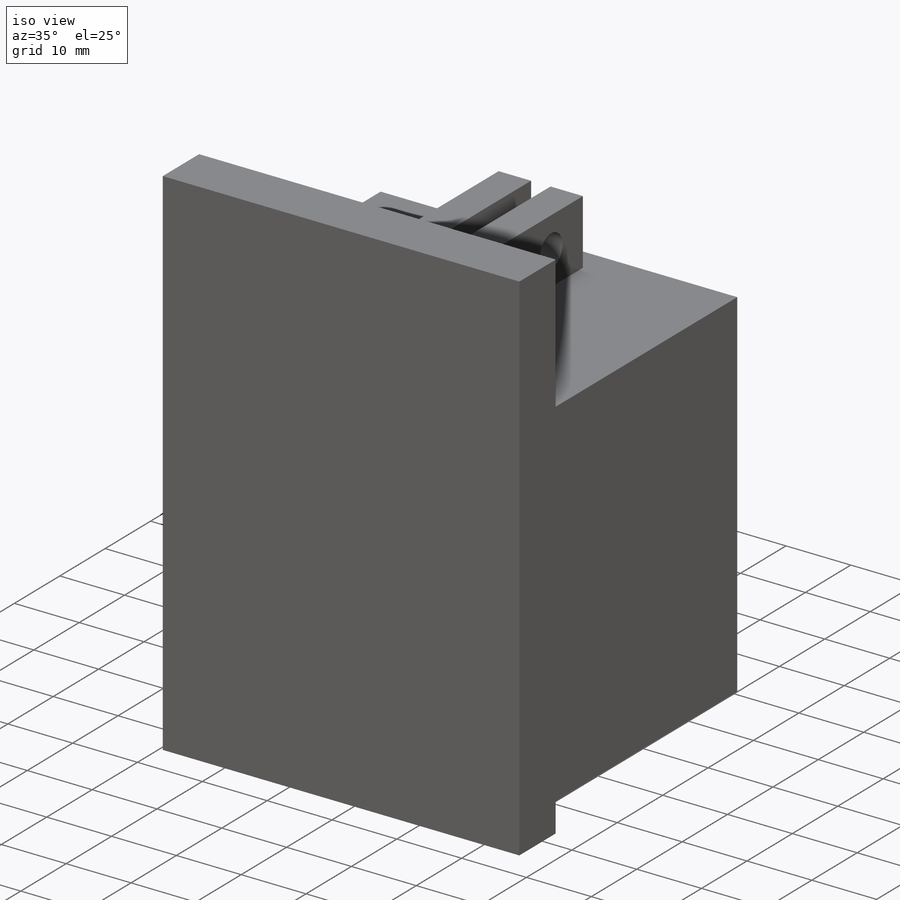
[diagram: iso view]
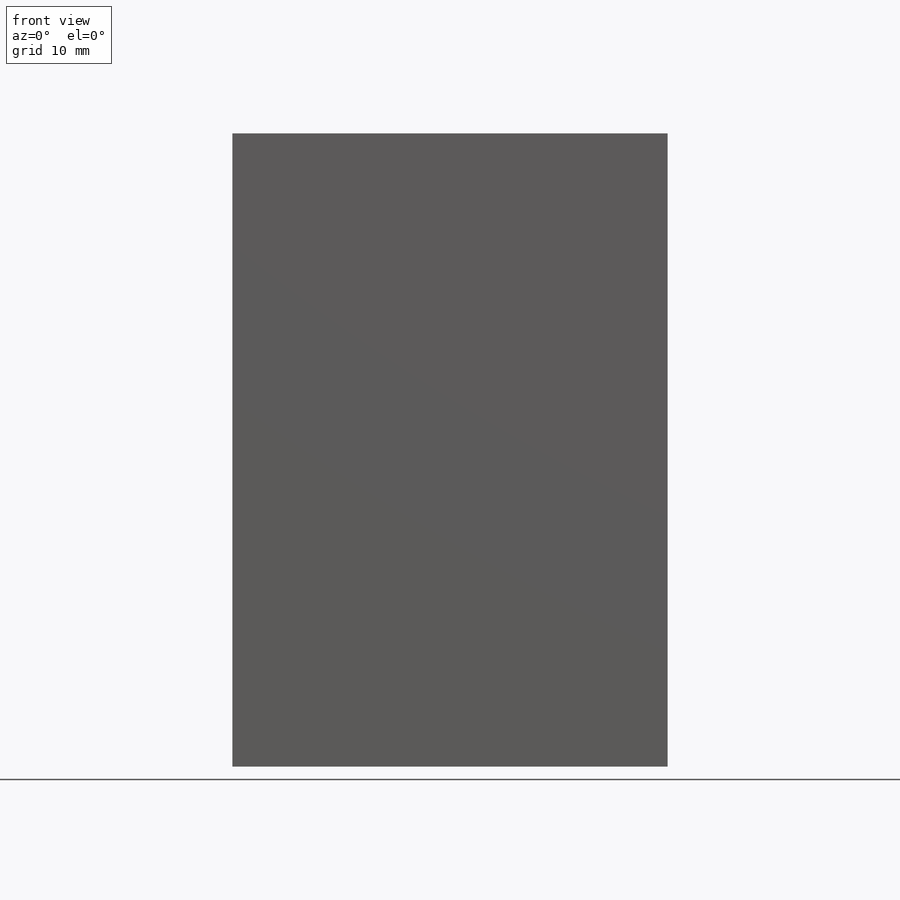
[diagram: front view]
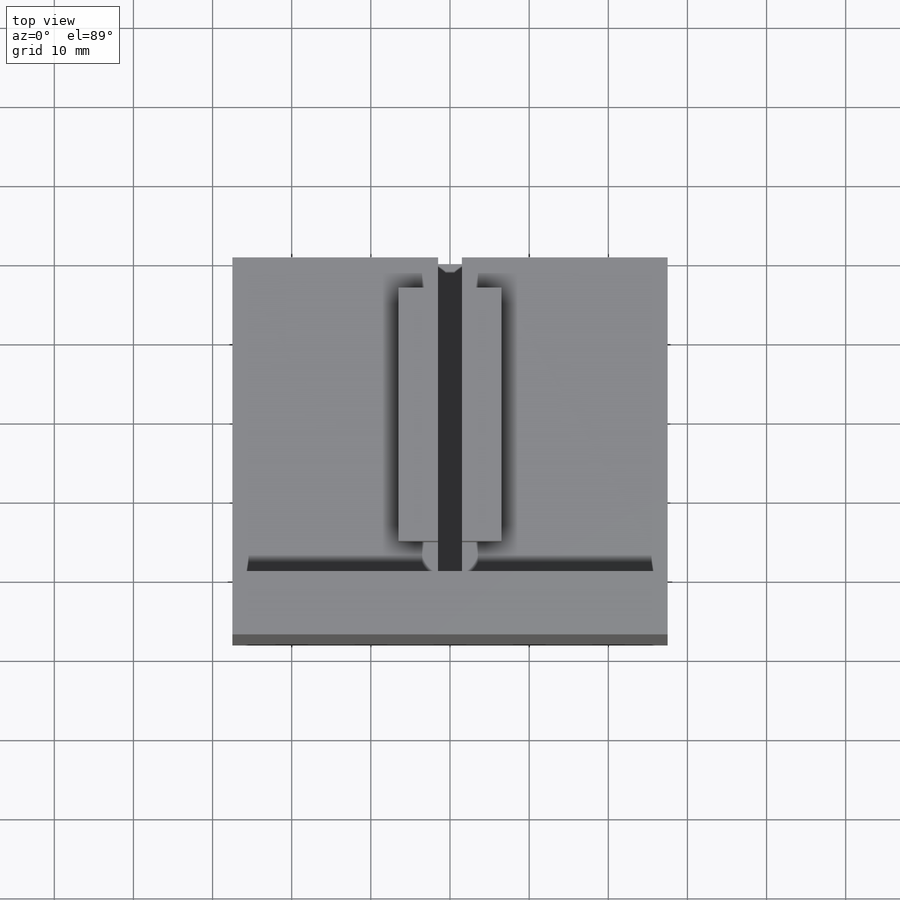
[diagram: top view]
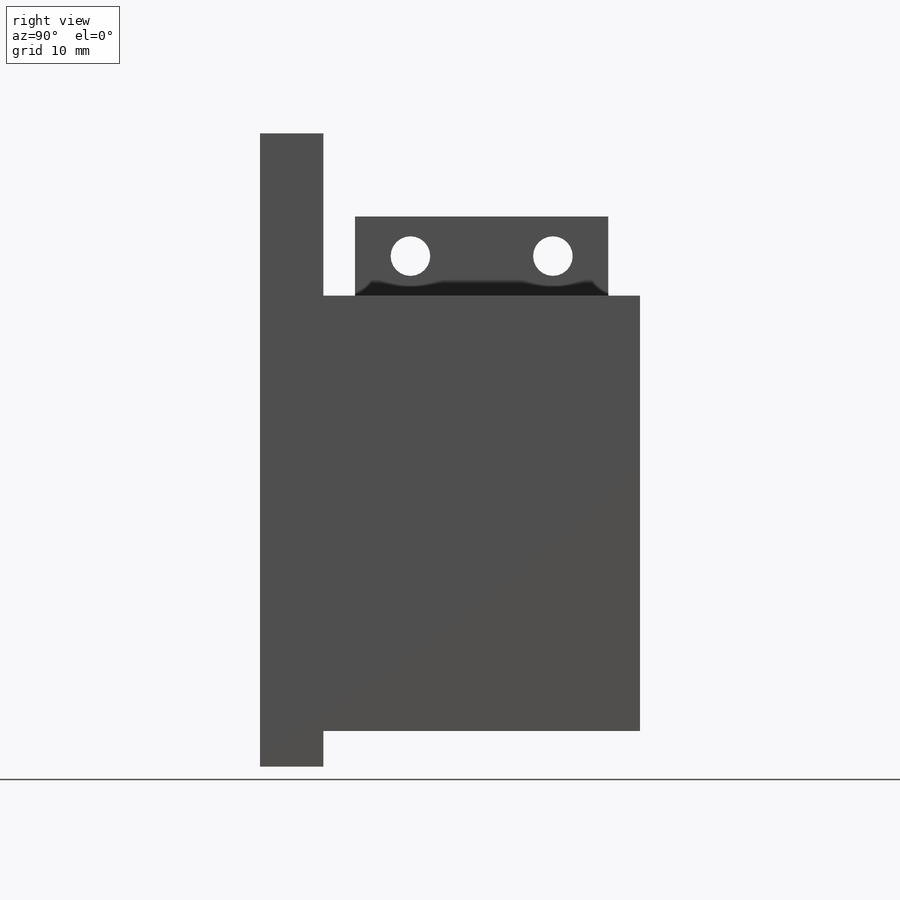
[diagram: right view]
SOLIDWORKS PART (.sldprt)
format: sldprt  version: not decoded by parser v0  size: 347,136 bytes
history: native  units: mm
features: sketch x8, plane x5, extrude x4, cut_extrude x3, material x1, mirror x1 (+9 scaffold rows collapsed)
feature tree (31):
  scaffold x9  (default folders/planes/origin — collapsed)
  material  "Material <not specified>"
  plane  "Plan de face"
  plane  "Plan de dessus"
  plane  "Plan de droite"
  sketch  "Sketch1"  dims[D1=55.0mm D2=42.0mm D3=6.5mm D4=6.5mm D5=3.0mm D6=10.0mm D7=5.0mm D8=42.0mm]
  extrude  "Boss-Extrude1"  Depth=40mm
  sketch  "Sketch2"  dims[D1=5.0mm D2=9.0mm D3=5.0mm]
  cut_extrude  "Cut-Extrude1"  [1 undecoded]
  sketch  "Sketch3"  dims[D1=3.0mm D2=2.5mm D3=20.0mm D4=2.0mm D5=7.0mm D6=2.0mm]
  cut_extrude  "Cut-Extrude2"  Depth=10mm
  sketch  "Sketch6"  dims[c1.D1=6.5mm c1.D2=110.0mm c1.D3=55.0mm c1.D4=~5.686433mm c2.D1=4.5mm]
  extrude  "Boss-Extrude8"  Depth=8mm
  sketch  "Sketch7"  dims[D1=4.0mm]
  cut_extrude  "Cut-Extrude3"  [1 undecoded]
  sketch  "Sketch9"  dims[D1=8.0mm D2=30.0mm D3=8.0mm]
  extrude  "Boss-Extrude9"  Depth=20mm
  extrude  "Boss-Extrude10"  [1 undecoded]
  sketch  "Sketch9<2>"  dims[D1=7.0mm D19=48.0mm]
  plane  "Plane1"  Offset=11mm
  sketch  "Sketch10"  dims[c1.D1=20.0mm c1.D2=20.0mm c2.D1=8.0mm]
  plane  "Plane3"
  mirror  "Mirror1"
decode coverage: 12 of 16 modeling features carry decoded parameters
note: ~ marks probable driven/reference dimensions
note: 3 parameter values undecoded
summary: no parameter record found for 3 features
note: suppression state not decoded; provenance and decode notes live in map.json
